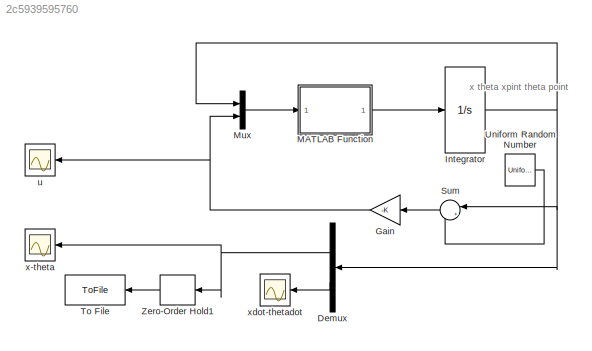
MODEL slx_2c5939595760
KIND model
CONFIG AbsTol = auto
CONFIG EnableMultiTasking = off
CONFIG FixedStep = auto
CONFIG MaxStep = auto
CONFIG MinStep = auto
CONFIG RelTol = 1e-3
CONFIG SampleTimeConstraint = Unconstrained
CONFIG SolverName = VariableStepAuto
CONFIG StartTime = 0.0
CONFIG StopTime = 5
BLOCK [Demux] Demux
  Outputs = 2
BLOCK [Gain] Gain
  Gain = -K
  Multiplication = Matrix(K*u)
  NameLocation = top
BLOCK [Integrator] Integrator
  InitialCondition = [0;0.3;0;0]
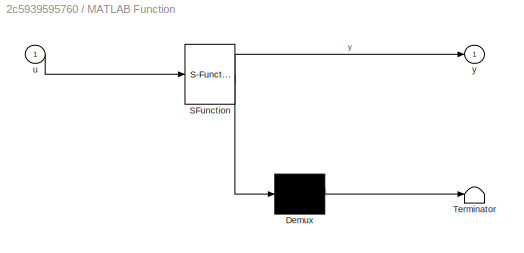
BLOCK [SubSystem] MATLAB Function
  ErrorFcn = Stateflow.Translate.translate
  PermitHierarchicalResolution = ExplicitOnly
  SFBlockType = MATLAB Function
  TreatAsAtomicUnit = on
BLOCK [Demux] MATLAB Function/ Demux 
  Outputs = 1
BLOCK [S-Function] MATLAB Function/ SFunction 
  EnableBusSupport = on
  FunctionName = sf_sfun
  PortCounts = [1 2]
  SFcnIsStateOwnerBlock = off
  SFunctionDeploymentMode = off
  Tag = Stateflow S-Function 2
BLOCK [Terminator] MATLAB Function/ Terminator 
BLOCK [Inport] MATLAB Function/u
BLOCK [Outport] MATLAB Function/y
BLOCK [Mux] Mux
  DisplayOption = bar
  Inputs = 2
BLOCK [Sum] Sum
  Inputs = |++
  NameLocation = top
BLOCK [ToFile] To File
  Filename = xtheta.mat
  SampleTime = 0.01
  SaveFormat = Timeseries
BLOCK [UniformRandomNumber] Uniform Random Number
  Maximum = 0.02
  Minimum = -0.02
  SampleTime = 1/1000
BLOCK [ZeroOrderHold] Zero-Order Hold1
  SampleTime = 0.01
BLOCK [Scope] u
  Floating = off
  NumInputPorts = 1
  ScopeSpecificationString = Simulink.scopes.TimeScopeBlockCfg('CurrentConfiguration', extmgr.ConfigurationSet(extmgr.Configuration('Core','General UI',true),extmgr.Configuration('Core','Source UI',true),extmgr.Configuration('Sources','WiredSimulink',true,'DataLoggingVariableName','ScopeData2'),extmgr.Configuration('Visuals','Time Domain',true,'SerializedDisplays',{struct('MinYLimReal','-22.08432','MaxYLimReal','22.92684','YL...<+1454ch>
BLOCK [Scope] x-theta
  Floating = off
  NumInputPorts = 1
  ScopeSpecificationString = Simulink.scopes.TimeScopeBlockCfg('CurrentConfiguration', extmgr.ConfigurationSet(extmgr.Configuration('Core','General UI',true),extmgr.Configuration('Core','Source UI',true),extmgr.Configuration('Sources','WiredSimulink',true),extmgr.Configuration('Visuals','Time Domain',true,'SerializedDisplays',{struct('MinYLimReal','-0.5','MaxYLimReal','0.5','YLabelReal','','MinYLimMag','0.00000','MaxYLimMag',...<+1398ch>
BLOCK [Scope] xdot-thetadot
  Floating = off
  NumInputPorts = 1
  ScopeSpecificationString = Simulink.scopes.TimeScopeBlockCfg('CurrentConfiguration', extmgr.ConfigurationSet(extmgr.Configuration('Core','General UI',true),extmgr.Configuration('Core','Source UI',true),extmgr.Configuration('Sources','WiredSimulink',true,'DataLoggingVariableName','ScopeData1'),extmgr.Configuration('Visuals','Time Domain',true,'SerializedDisplays',{struct('MinYLimReal','-0.64492','MaxYLimReal','1.9693','YLabe...<+1453ch>
ANNOTATION (root): x theta xpint theta point
NET Demux:1 -> Zero-Order Hold1:1, x-theta:1
LINE Demux:2 -> xdot-thetadot:1
NET Gain:1 -> Mux:2, u:1
NET Integrator:1 -> Demux:1, Mux:1, Sum:1
LINE MATLAB Function:1 -> Integrator:1
LINE Mux:1 -> MATLAB Function:1
LINE Sum:1 -> Gain:1
LINE Uniform Random Number:1 -> Sum:2
LINE Zero-Order Hold1:1 -> To File:1
note: NET lines group one-source signal fan-out (src -> all destinations, sorted); 1:1 wires keep LINE
CHART MATLAB Function states=1 transitions=1
  STATE_LABEL 'eML_blk_kernel()'
  STATE_LABEL "SCRIPT:\nfunction y = dynamique(u)\n% fonction définissant la dynamique du système: renvoie f(X,U) avec X\n% l'état, et U la variable de commande physique (composante T de la force\n% appliquée au chariot)\n\nx= u(1); %position du chariot\ntheta= u(2); %inclinaison de la barre\nxdot= u(3); % vitesse du chariot\nthetadot= u(4); % vitesse angulaire de la barre\nT= u(5); % force appliquée au chariot\n\n% Definti...<+592ch>"
CHART  states=0 transitions=0
